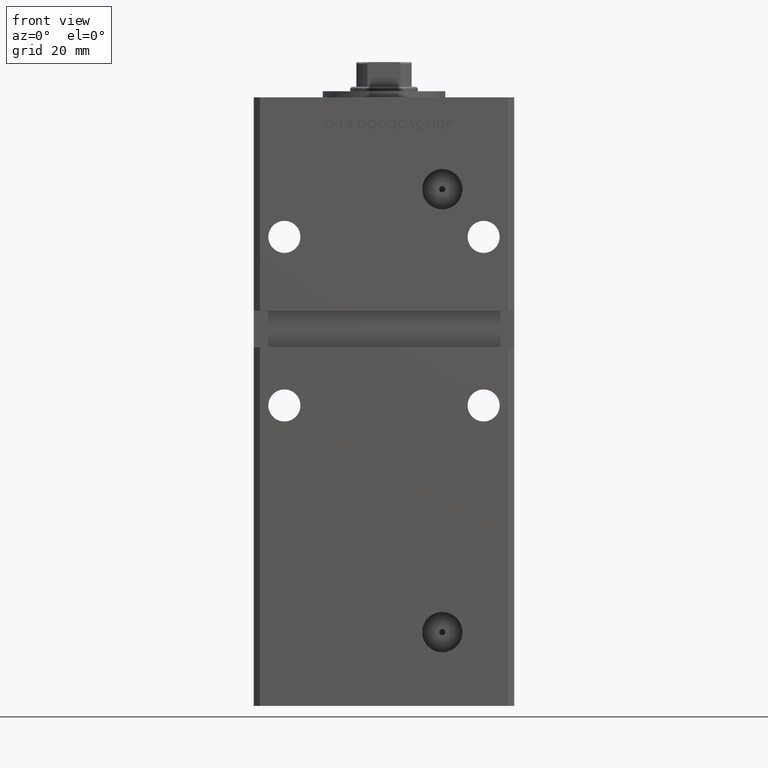
[diagram: clean part render]
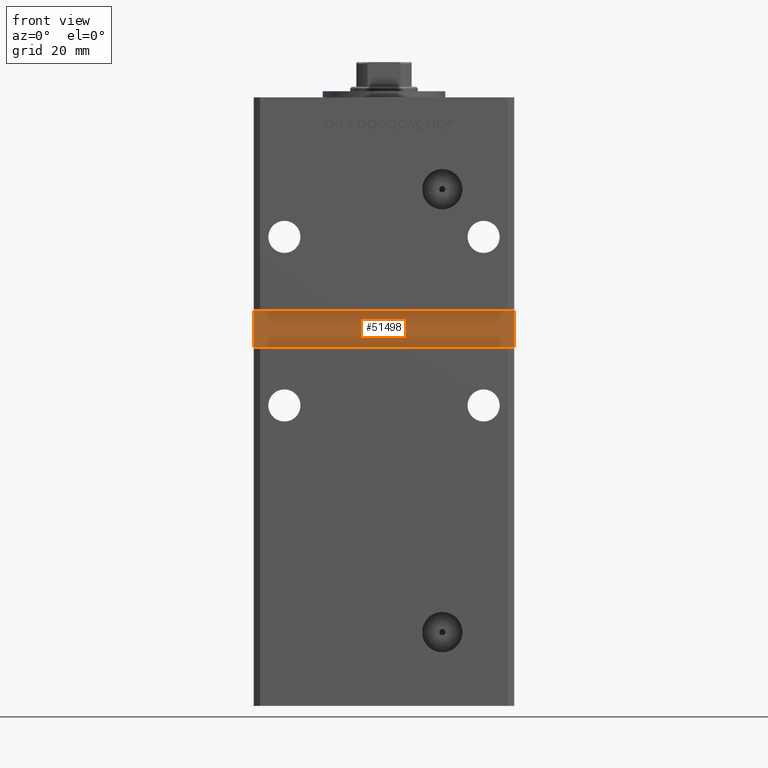
[diagram: same view with one face highlighted and labeled with its STEP entity id]
A machine part, front view. The second image highlights one B-rep face of the part: STEP entity #51498.
In plain terms, the highlighted planar face has unit normal (0, -1, 0).
Its self-contained STEP definition (entity closure, byte-faithful):
#1100 = CARTESIAN_POINT ( 'NONE',  ( -42.49999999999998579, -32.50000000000000711, 114.0000000000000142 ) ) ;
#5158 = CARTESIAN_POINT ( 'NONE',  ( 0.000000000000000000, -32.50000000000000711, 0.000000000000000000 ) ) ;
#7001 = VECTOR ( 'NONE', #21947, 1000.000000000000000 ) ;
#8678 = DIRECTION ( 'NONE',  ( 0.000000000000000000, -1.000000000000000000, 0.000000000000000000 ) ) ;
#10331 = DIRECTION ( 'NONE',  ( -0.000000000000000000, -0.000000000000000000, 1.000000000000000000 ) ) ;
#14362 = LINE ( 'NONE', #18128, #40747 ) ;
#15227 = CARTESIAN_POINT ( 'NONE',  ( -42.49999999999998579, -32.50000000000000711, 102.0000000000000142 ) ) ;
#15257 = EDGE_LOOP ( 'NONE', ( #16451, #17689, #24488, #38876 ) ) ;
#16451 = ORIENTED_EDGE ( 'NONE', *, *, #25030, .T. ) ;
#16687 = EDGE_CURVE ( 'NONE', #48899, #22959, #27937, .T. ) ;
#17689 = ORIENTED_EDGE ( 'NONE', *, *, #50119, .T. ) ;
#18128 = CARTESIAN_POINT ( 'NONE',  ( 42.49999999999998579, -32.50000000000000711, 114.0000000000000142 ) ) ;
#20044 = DIRECTION ( 'NONE',  ( -5.782411586589358625E-16, 0.000000000000000000, -1.000000000000000000 ) ) ;
#21485 = EDGE_CURVE ( 'NONE', #53025, #48899, #44778, .T. ) ;
#21686 = CARTESIAN_POINT ( 'NONE',  ( -42.49999999999998579, -32.50000000000000711, 114.0000000000000142 ) ) ;
#21947 = DIRECTION ( 'NONE',  ( -1.000000000000000000, -0.000000000000000000, -0.000000000000000000 ) ) ;
#22959 = VERTEX_POINT ( 'NONE', #45364 ) ;
#24488 = ORIENTED_EDGE ( 'NONE', *, *, #21485, .T. ) ;
#25030 = EDGE_CURVE ( 'NONE', #22959, #39191, #14362, .T. ) ;
#25084 = DIRECTION ( 'NONE',  ( 0.000000000000000000, -0.000000000000000000, -1.000000000000000000 ) ) ;
#25601 = FACE_OUTER_BOUND ( 'NONE', #15257, .T. ) ;
#27937 = LINE ( 'NONE', #39483, #32257 ) ;
#32257 = VECTOR ( 'NONE', #39744, 1000.000000000000000 ) ;
#34868 = CARTESIAN_POINT ( 'NONE',  ( 42.49999999999998579, -32.50000000000000711, 114.0000000000000142 ) ) ;
#38067 = LINE ( 'NONE', #21686, #7001 ) ;
#38876 = ORIENTED_EDGE ( 'NONE', *, *, #16687, .T. ) ;
#39025 = VECTOR ( 'NONE', #20044, 1000.000000000000000 ) ;
#39191 = VERTEX_POINT ( 'NONE', #34868 ) ;
#39483 = CARTESIAN_POINT ( 'NONE',  ( -42.49999999999998579, -32.50000000000000711, 102.0000000000000142 ) ) ;
#39744 = DIRECTION ( 'NONE',  ( 1.000000000000000000, 0.000000000000000000, 0.000000000000000000 ) ) ;
#40724 = CARTESIAN_POINT ( 'NONE',  ( -42.49999999999998579, -32.50000000000000711, 114.0000000000000142 ) ) ;
#40747 = VECTOR ( 'NONE', #10331, 1000.000000000000000 ) ;
#41986 = PLANE ( 'NONE',  #47441 ) ;
#44778 = LINE ( 'NONE', #40724, #39025 ) ;
#45364 = CARTESIAN_POINT ( 'NONE',  ( 42.49999999999998579, -32.50000000000000000, 102.0000000000000142 ) ) ;
#47441 = AXIS2_PLACEMENT_3D ( 'NONE', #5158, #8678, #25084 ) ;
#48899 = VERTEX_POINT ( 'NONE', #15227 ) ;
#50119 = EDGE_CURVE ( 'NONE', #39191, #53025, #38067, .T. ) ;
#51498 = ADVANCED_FACE ( 'NONE', ( #25601 ), #41986, .T. ) ;
#53025 = VERTEX_POINT ( 'NONE', #1100 ) ;